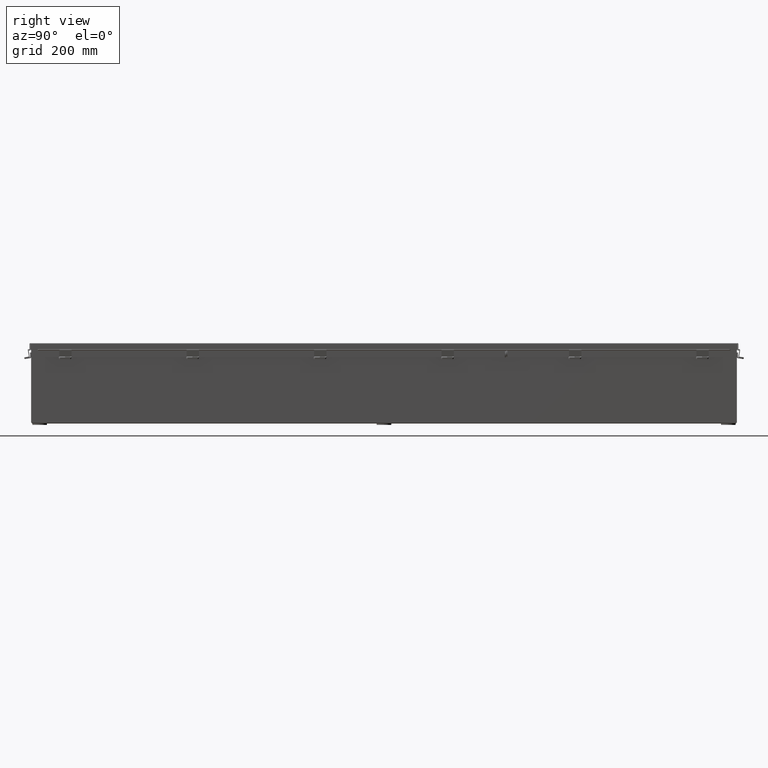
[diagram: clean part render]
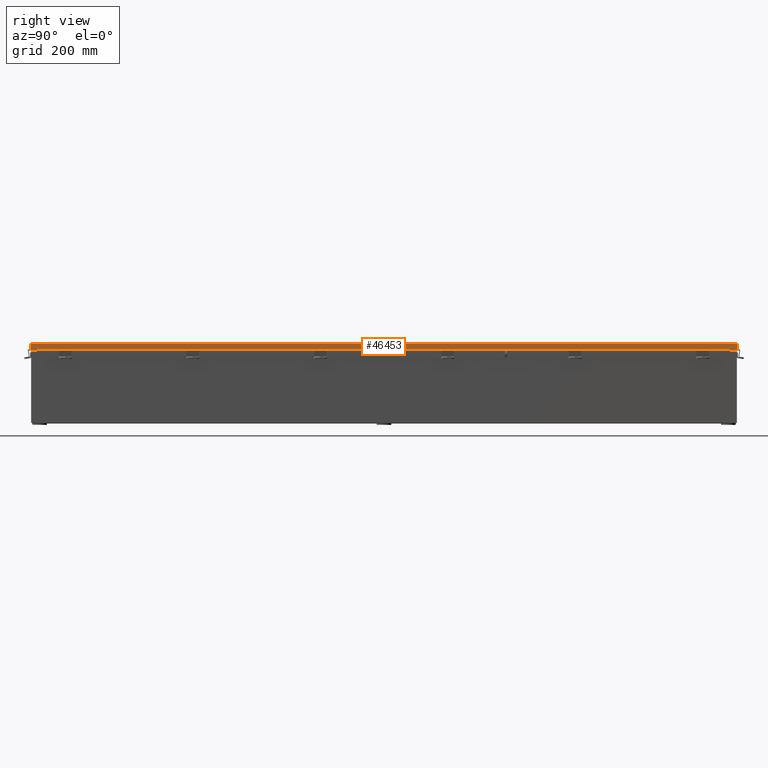
[diagram: same view with one face highlighted and labeled with its STEP entity id]
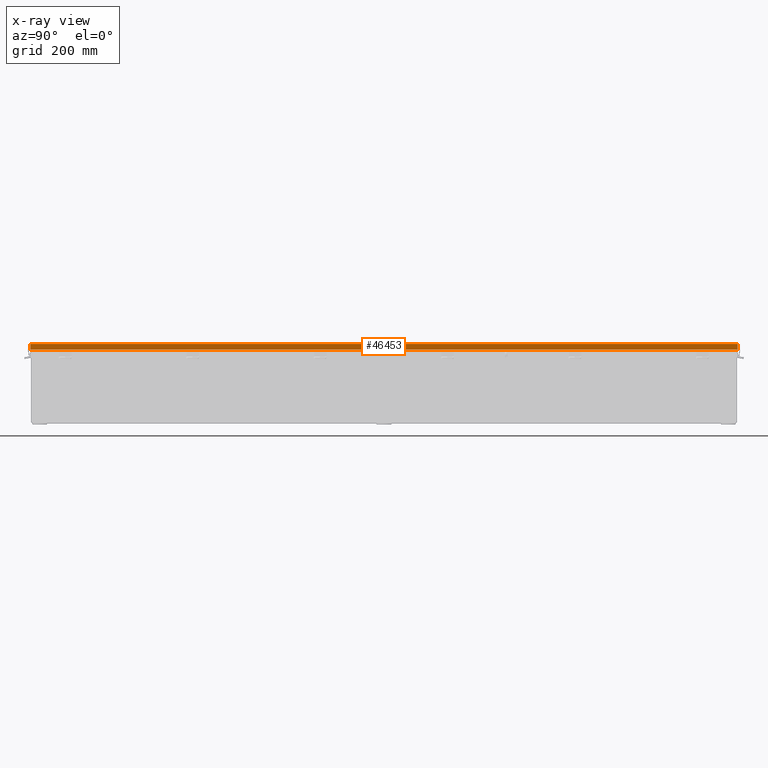
[diagram: x-ray of the same camera — body ghosted, the highlighted face saturated]
A machine part, right view. The second image highlights one B-rep face of the part: STEP entity #46453.
The next image is the same camera in x-ray: the body ghosted, the highlighted face saturated — about 0% of this face is hidden behind the body in this view.
In plain terms, the highlighted planar face has unit normal (-1, 0, -0).
Its self-contained STEP definition (entity closure, byte-faithful):
#1758 = VECTOR ( 'NONE', #21800, 39.37007874015748100 ) ;
#2114 = LINE ( 'NONE', #41901, #21812 ) ;
#2821 = DIRECTION ( 'NONE',  ( 1.922183719638108200E-028, 1.000000000000000000, 3.022269171908892400E-017 ) ) ;
#6738 = VERTEX_POINT ( 'NONE', #31361 ) ;
#6823 = CARTESIAN_POINT ( 'NONE',  ( -4.156250000000031100, 36.07447893218812900, 0.6122999999999994000 ) ) ;
#7283 = CARTESIAN_POINT ( 'NONE',  ( -4.156250000000031100, -1.067128122525102800E-017, 0.6123000000000005100 ) ) ;
#7536 = AXIS2_PLACEMENT_3D ( 'NONE', #29749, #18140, #45451 ) ;
#8004 = VERTEX_POINT ( 'NONE', #29133 ) ;
#8830 = VECTOR ( 'NONE', #24275, 39.37007874015748100 ) ;
#9805 = EDGE_CURVE ( 'NONE', #41074, #15613, #49016, .T. ) ;
#14448 = DIRECTION ( 'NONE',  ( -3.569293475308526100E-015, 7.186029808497612900E-029, 1.000000000000000000 ) ) ;
#15613 = VERTEX_POINT ( 'NONE', #6823 ) ;
#17792 = FACE_OUTER_BOUND ( 'NONE', #45735, .T. ) ;
#18140 = DIRECTION ( 'NONE',  ( 1.000000000000000000, 1.918851025044625400E-028, 3.569293475308526100E-015 ) ) ;
#18432 = VECTOR ( 'NONE', #22914, 39.37007874015748100 ) ;
#18859 = ORIENTED_EDGE ( 'NONE', *, *, #42514, .T. ) ;
#21214 = ORIENTED_EDGE ( 'NONE', *, *, #32262, .F. ) ;
#21800 = DIRECTION ( 'NONE',  ( 3.154466349054041300E-013, -7.158912714880640700E-029, -1.000000000000000000 ) ) ;
#21812 = VECTOR ( 'NONE', #45806, 39.37007874015748100 ) ;
#22914 = DIRECTION ( 'NONE',  ( 1.918070407330989000E-028, 1.000000000000000000, 7.193425379484101400E-029 ) ) ;
#24275 = DIRECTION ( 'NONE',  ( -3.569293475308526100E-015, 7.186029808497612900E-029, 1.000000000000000000 ) ) ;
#25355 = ORIENTED_EDGE ( 'NONE', *, *, #34724, .F. ) ;
#25825 = VERTEX_POINT ( 'NONE', #39111 ) ;
#26215 = CARTESIAN_POINT ( 'NONE',  ( -4.156250000000023100, -36.07447893218814300, 0.01299999999999792100 ) ) ;
#27033 = DIRECTION ( 'NONE',  ( 1.918070407330989000E-028, 1.000000000000000000, 7.193425379484101400E-029 ) ) ;
#27345 = EDGE_CURVE ( 'NONE', #28689, #36258, #48046, .T. ) ;
#27395 = CARTESIAN_POINT ( 'NONE',  ( -4.156250000000031100, -36.07447893218814300, 0.6123000000000005100 ) ) ;
#28689 = VERTEX_POINT ( 'NONE', #26215 ) ;
#29133 = CARTESIAN_POINT ( 'NONE',  ( -4.156250000000036400, -35.32447893218812900, 0.5967115427318761000 ) ) ;
#29204 = CARTESIAN_POINT ( 'NONE',  ( -4.156250000000023100, 36.07447893218812900, 0.01299999999999901400 ) ) ;
#29749 = CARTESIAN_POINT ( 'NONE',  ( -4.156250000000028400, 0.0000000000000000000, -1.529834876451987200E-014 ) ) ;
#30324 = CARTESIAN_POINT ( 'NONE',  ( -4.156250000000036400, 35.32447893218812100, 0.5967115427318749900 ) ) ;
#31361 = CARTESIAN_POINT ( 'NONE',  ( -4.156250000000036400, 35.32447893218812100, 0.5967115427318749900 ) ) ;
#32177 = LINE ( 'NONE', #7283, #40145 ) ;
#32262 = EDGE_CURVE ( 'NONE', #42146, #6738, #35530, .T. ) ;
#32349 = EDGE_CURVE ( 'NONE', #6738, #8004, #38595, .T. ) ;
#33003 = EDGE_CURVE ( 'NONE', #28689, #41074, #41566, .T. ) ;
#34266 = DIRECTION ( 'NONE',  ( -1.918070407330989000E-028, -1.000000000000000000, -7.193425379484101400E-029 ) ) ;
#34724 = EDGE_CURVE ( 'NONE', #8004, #25825, #2114, .T. ) ;
#35530 = LINE ( 'NONE', #49161, #1758 ) ;
#35578 = ORIENTED_EDGE ( 'NONE', *, *, #32349, .F. ) ;
#36258 = VERTEX_POINT ( 'NONE', #27395 ) ;
#37354 = VECTOR ( 'NONE', #34266, 39.37007874015748100 ) ;
#37867 = CARTESIAN_POINT ( 'NONE',  ( -4.156250000000028400, 36.07447893218812900, 0.0000000000000000000 ) ) ;
#38241 = ORIENTED_EDGE ( 'NONE', *, *, #33003, .F. ) ;
#38505 = CARTESIAN_POINT ( 'NONE',  ( -4.156250000000031100, -1.067128122525102800E-017, 0.6123000000000005100 ) ) ;
#38595 = LINE ( 'NONE', #30324, #37354 ) ;
#39111 = CARTESIAN_POINT ( 'NONE',  ( -4.156250000000031100, -35.32447893218814300, 0.6123000000000005100 ) ) ;
#39839 = VECTOR ( 'NONE', #14448, 39.37007874015748100 ) ;
#40145 = VECTOR ( 'NONE', #27033, 39.37007874015748100 ) ;
#40356 = VECTOR ( 'NONE', #2821, 39.37007874015748100 ) ;
#40680 = EDGE_CURVE ( 'NONE', #36258, #25825, #50852, .T. ) ;
#41074 = VERTEX_POINT ( 'NONE', #29204 ) ;
#41545 = PLANE ( 'NONE',  #7536 ) ;
#41566 = LINE ( 'NONE', #45962, #40356 ) ;
#41901 = CARTESIAN_POINT ( 'NONE',  ( -4.156250000000036400, -35.32447893218812900, 0.5967115427318761000 ) ) ;
#42146 = VERTEX_POINT ( 'NONE', #47555 ) ;
#42514 = EDGE_CURVE ( 'NONE', #42146, #15613, #32177, .T. ) ;
#45451 = DIRECTION ( 'NONE',  ( 3.569293475308526100E-015, -7.186029808497612900E-029, -1.000000000000000000 ) ) ;
#45583 = ORIENTED_EDGE ( 'NONE', *, *, #27345, .T. ) ;
#45735 = EDGE_LOOP ( 'NONE', ( #21214, #18859, #46948, #38241, #45583, #48732, #25355, #35578 ) ) ;
#45806 = DIRECTION ( 'NONE',  ( -7.009925220119110600E-014, -2.803970088047626000E-013, 1.000000000000000000 ) ) ;
#45962 = CARTESIAN_POINT ( 'NONE',  ( -4.156250000000023100, 36.15624999999999300, 0.01300000000000010700 ) ) ;
#46453 = ADVANCED_FACE ( 'NONE', ( #17792 ), #41545, .F. ) ;
#46948 = ORIENTED_EDGE ( 'NONE', *, *, #9805, .F. ) ;
#47543 = CARTESIAN_POINT ( 'NONE',  ( -4.156250000000028400, -36.07447893218814300, -1.420560956705417000E-014 ) ) ;
#47555 = CARTESIAN_POINT ( 'NONE',  ( -4.156250000000031100, 35.32447893218812100, 0.6122999999999994000 ) ) ;
#48046 = LINE ( 'NONE', #47543, #8830 ) ;
#48732 = ORIENTED_EDGE ( 'NONE', *, *, #40680, .T. ) ;
#49016 = LINE ( 'NONE', #37867, #39839 ) ;
#49161 = CARTESIAN_POINT ( 'NONE',  ( -4.156250000000036400, 35.32447893218812100, 0.6122999999999971800 ) ) ;
#50852 = LINE ( 'NONE', #38505, #18432 ) ;